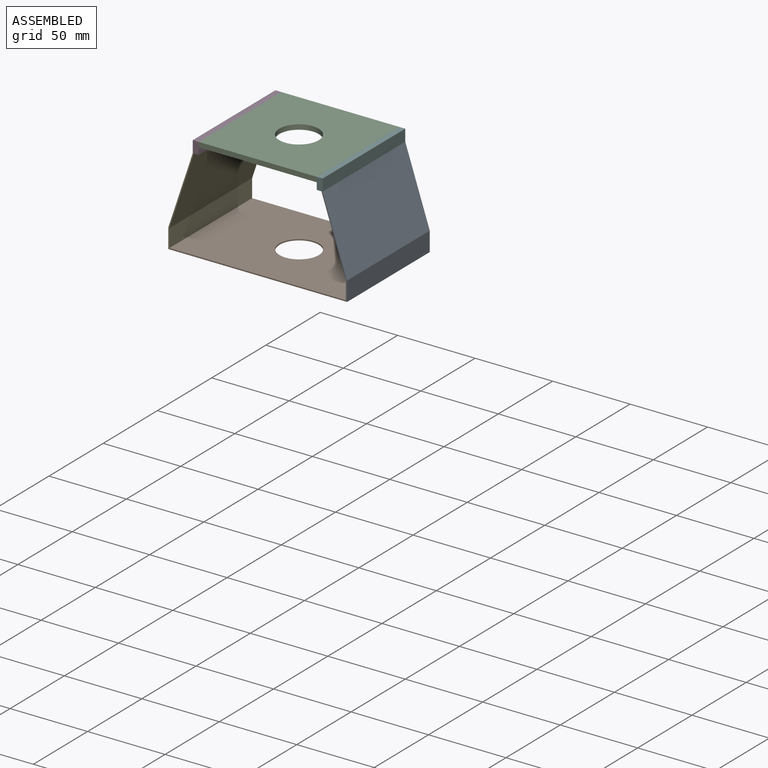
[diagram: assembled view]
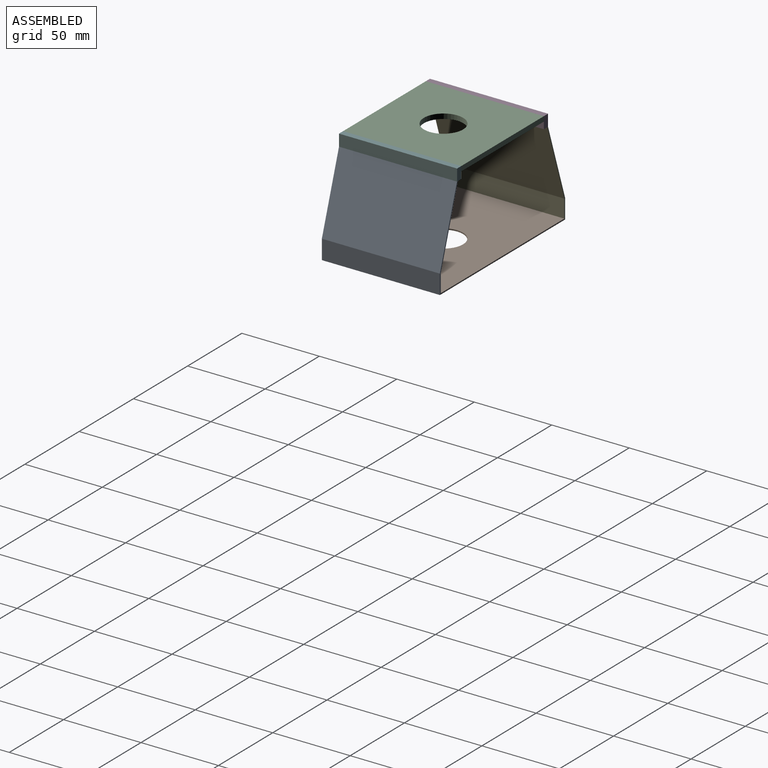
[diagram: assembled view, second angle]
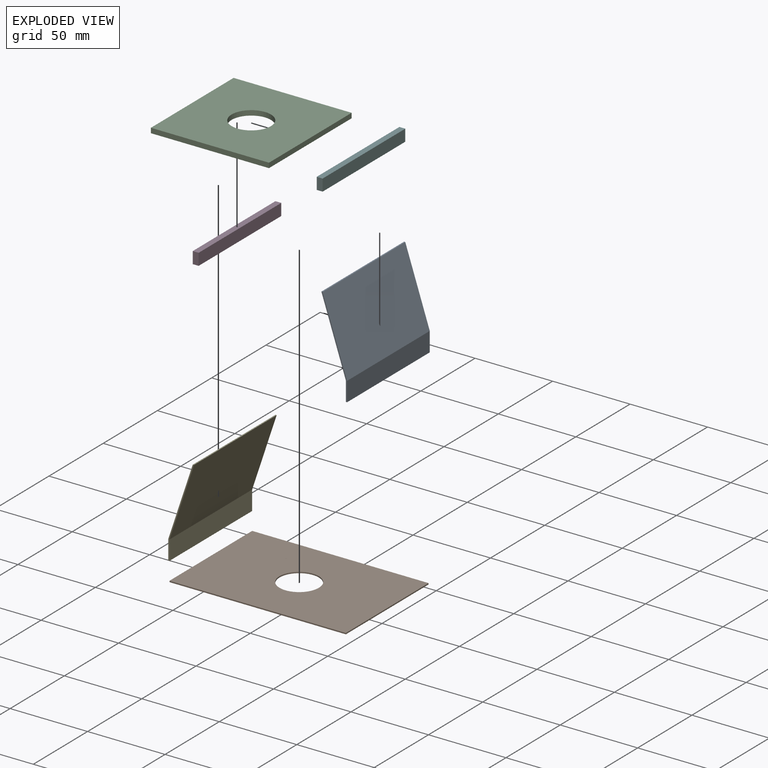
[diagram: exploded view]
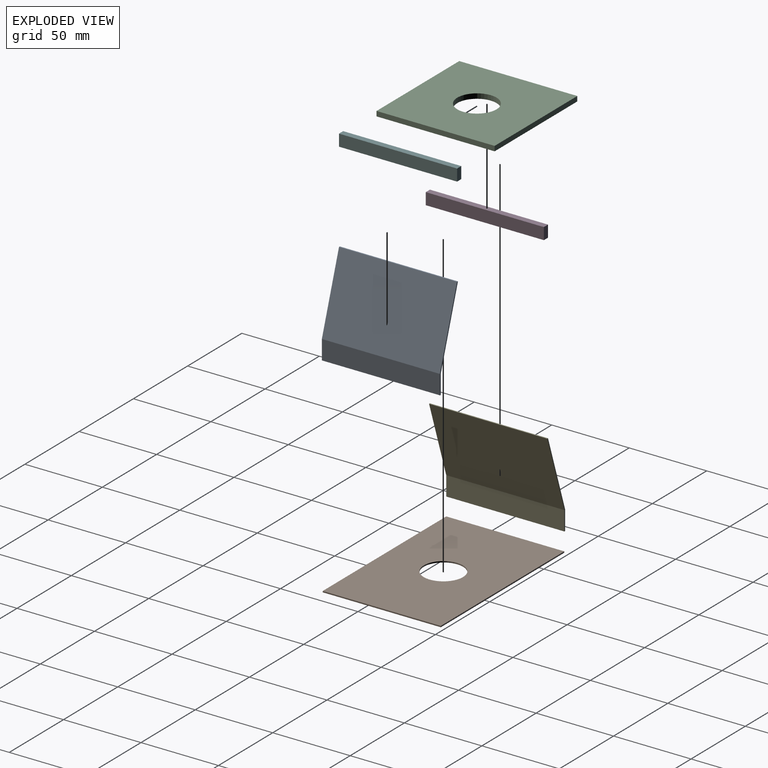
[diagram: exploded view, second angle]
ASSEMBLY  parts=6 mates=5
PART A: 8 faces, bbox 16.6x76.2x60.1 mm
  f0: plane 76.2x0.79mm, normal (0,0,-1), area 60.5mm2, adj f1,f5,f6,f7
  f1: plane 76.2x12.48mm, normal (-1,0,0), area 951.2mm2, adj f0,f2,f6,f7
  f2: plane 76.2x47.64mm, normal (-0.95,0,0.31), area 3825.2mm2, adj f1,f3,f6,f7
  f3: plane 76.2x0.79mm, normal (0,0,1), area 60.5mm2, adj f2,f4,f6,f7
  f4: plane 76.2x47.64mm, normal (0.95,0,-0.31), area 3825.2mm2, adj f3,f5,f6,f7
  f5: plane 76.2x12.48mm, normal (1,0,0), area 951.2mm2, adj f0,f4,f6,f7
  f6: plane 60.13x16.6mm, normal (0,-1,0), area 47.7mm2, adj f0,f1,f2,f3,f4,f5
  f7: plane 60.13x16.6mm, normal (0,1,0), area 47.7mm2, adj f0,f1,f2,f3,f4,f5
PART B: 7 faces, bbox 113.9x76.2x0.8 mm
  f0: plane 76.2x0.79mm, normal (-1,0,0), area 60.5mm2, adj f1,f3,f4,f5
  f1: plane 113.85x76.2mm, normal (0,0,1), area 8168.9mm2, adj f0,f2,f4,f5,f6
  f2: plane 76.2x0.79mm, normal (1,0,-0.01), area 60.5mm2, adj f1,f3,f4,f5
  f3: plane 113.84x76.2mm, normal (0,0,-1), area 8168.1mm2, adj f0,f2,f4,f5,f6
  f4: plane 113.85x0.79mm, normal (0,-1,0), area 90.4mm2, adj f0,f1,f2,f3
  f5: plane 113.85x0.79mm, normal (0,1,0), area 90.4mm2, adj f0,f1,f2,f3
  f6: cylinder r=12.7mm len=25.4mm, axis (0,0,1), area 63.3mm2, adj f1,f3
PART C: 7 faces, bbox 76.2x76.2x3.2 mm
  f0: plane 76.2x3.18mm, normal (0,1,0), area 241.9mm2, adj f1,f3,f4,f5
  f1: plane 76.2x3.18mm, normal (-1,0,0), area 241.9mm2, adj f0,f2,f4,f5
  f2: plane 76.2x3.18mm, normal (0,-1,0), area 241.9mm2, adj f1,f3,f4,f5
  f3: plane 76.2x3.18mm, normal (1,0,0), area 241.9mm2, adj f0,f2,f4,f5
  f4: plane 76.2x76.2mm, normal (0,0,1), area 5299.7mm2, adj f0,f1,f2,f3,f6
  f5: plane 76.2x76.2mm, normal (0,0,-1), area 5299.7mm2, adj f0,f1,f2,f3,f6
  f6: cylinder r=12.7mm len=25.4mm, axis (0,0,1), area 253.4mm2, adj f4,f5
PART D: 6 faces, bbox 3.8x76.2x7.6 mm
  f0: plane 76.2x3.81mm, normal (0,0,-1), area 290.3mm2, adj f1,f3,f4,f5
  f1: plane 7.62x3.81mm, normal (0,-1,0), area 29mm2, adj f0,f2,f4,f5
  f2: plane 76.2x3.81mm, normal (0,0,1), area 290.3mm2, adj f1,f3,f4,f5
  f3: plane 7.62x3.81mm, normal (0,1,0), area 29mm2, adj f0,f2,f4,f5
  f4: plane 76.2x7.62mm, normal (1,0,0), area 580.6mm2, adj f0,f1,f2,f3
  f5: plane 76.2x7.62mm, normal (-1,0,0), area 580.6mm2, adj f0,f1,f2,f3
PART E: same geometry as A
PART F: same geometry as D
PLACE A rot(axis=(0,0,1),180deg) t=(80.01,0,0)mm
PLACE B t=(-3.81,-76.2,0)mm
PLACE C rot(axis=(1,0,0),180deg) t=(0,0,0)mm
PLACE D rot(axis=(1,0,0),180deg) t=(-3.81,0,-7.62)mm
PLACE E t=(-3.81,-76.2,0)mm
PLACE F rot(axis=(0,0,1),180deg) t=(80.01,0,0)mm
MATE fastened E.f3 <-> D.f2  axis (0,0,1) through (-3.81,-76.2,-7.62)mm
MATE fastened F.f4 <-> C.f3  axis (-1,0,0) through (76.2,0,0)mm
MATE fastened D.f4 <-> C.f1  axis (1,0,0) through (0,-76.2,0)mm
MATE fastened A.f3 <-> F.f0  axis (0,0,1) through (80.01,-76.2,-7.62)mm
MATE fastened B.f0 <-> E.f5  axis (-1,0,0) through (-18.83,-76.2,-67.75)mm
